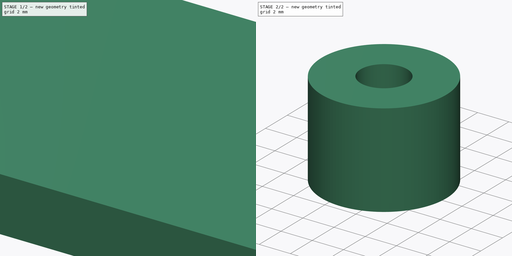
[diagram: build sequence overview — one tinted view per stage of 2, left to right]
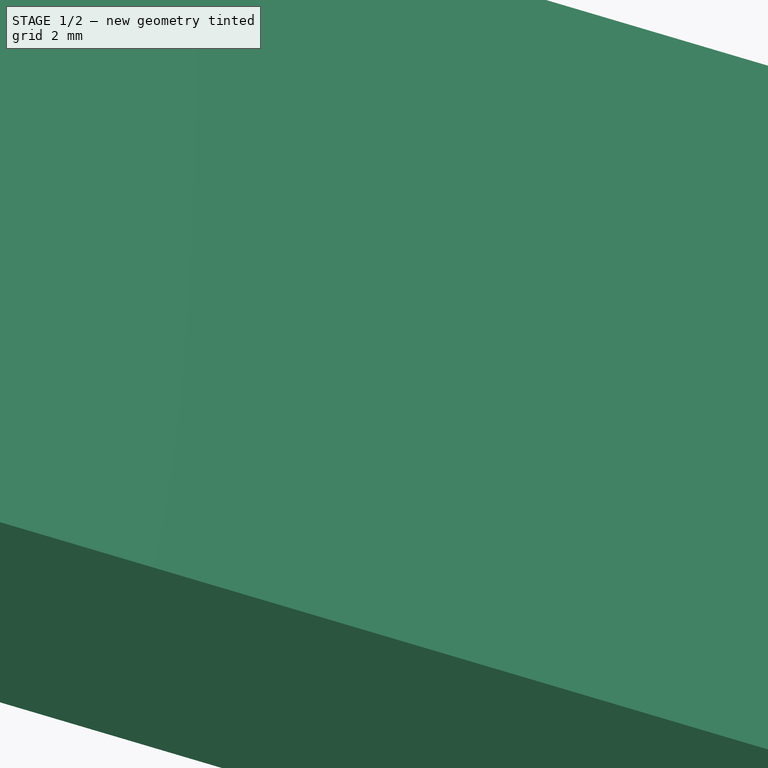
[diagram: stage 1 of 2 — iso view after this stage's code; geometry added in this stage tinted green]
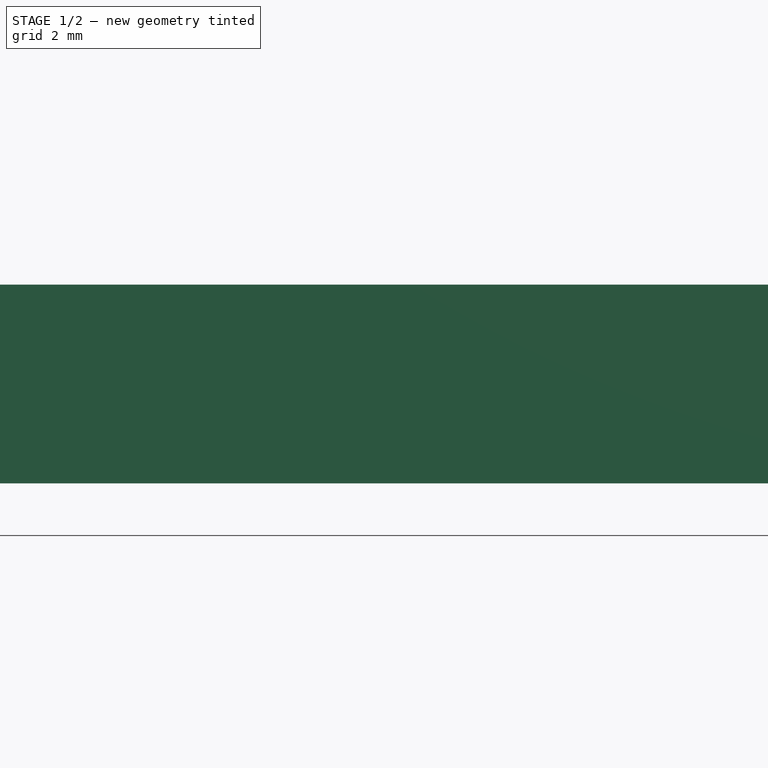
[diagram: stage 1 of 2 — front view after this stage's code; geometry added in this stage tinted green]
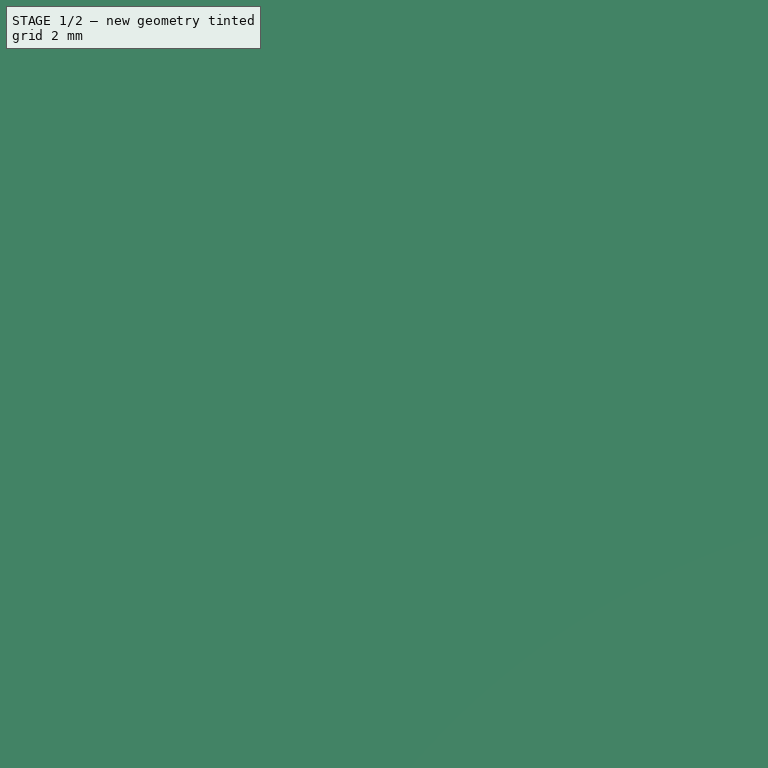
[diagram: stage 1 of 2 — top view after this stage's code; geometry added in this stage tinted green]
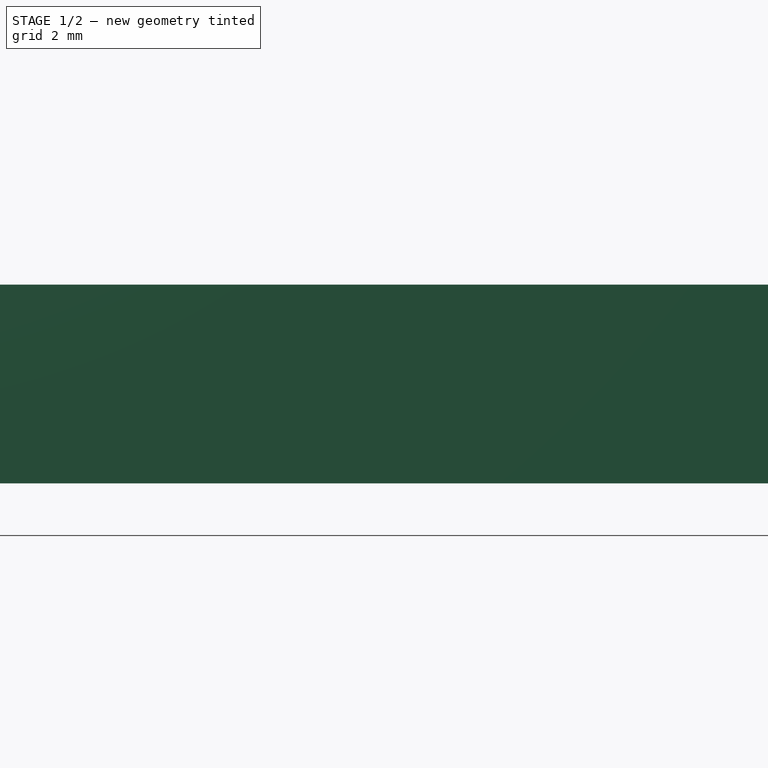
[diagram: stage 1 of 2 — right view after this stage's code; geometry added in this stage tinted green]
FCSTD DOCUMENT  (FreeCAD 0.18R16110 (Git))
Label: backplate
License: All rights reserved
LicenseURL: http://en.wikipedia.org/wiki/All_rights_reserved
objects: Sketcher::SketchObject×3, PartDesign::Pad×1, PartDesign::Body×1, Part::Extrusion×1
note: 7 computed .brp shape members not serialized (recipe doc carries the construction recipe); baked Part::Feature solids carry a one-line shape summary decoded from their .brp

FEATURE [Sketcher::SketchObject] Sketch
  sketch-geometry (15):
    g0: LineSegment StartX=1 StartY=10 StartZ=0 EndX=-19 EndY=10 EndZ=0
    g1: LineSegment StartX=-19 StartY=10 StartZ=0 EndX=-19 EndY=-10 EndZ=0
    g2: LineSegment StartX=-19 StartY=-10 StartZ=0 EndX=-9 EndY=-10 EndZ=0
    g3: LineSegment StartX=-9 StartY=-10 StartZ=0 EndX=-9 EndY=-18 EndZ=0
    g4: LineSegment StartX=-9 StartY=-18 StartZ=0 EndX=-1 EndY=-18 EndZ=0
    g5: LineSegment StartX=-1 StartY=-18 StartZ=0 EndX=-1 EndY=-10 EndZ=0
    g6: LineSegment StartX=-1 StartY=-10 StartZ=0 EndX=19 EndY=-10 EndZ=0
    g7: LineSegment StartX=19 StartY=-10 StartZ=0 EndX=19 EndY=10 EndZ=0
    g8: LineSegment StartX=19 StartY=10 StartZ=0 EndX=9 EndY=10 EndZ=0
    g9: LineSegment StartX=9 StartY=10 StartZ=0 EndX=9 EndY=18 EndZ=0
    g10: LineSegment StartX=9 StartY=18 StartZ=0 EndX=1 EndY=18 EndZ=0
    g11: LineSegment StartX=1 StartY=18 StartZ=0 EndX=1 EndY=10 EndZ=0
    g12: LineSegment StartX=-5.3e-15 StartY=24.0097 StartZ=0 EndX=0 EndY=24.0097 EndZ=0
    g13: Circle CenterX=5 CenterY=14 CenterZ=0 NormalX=0 NormalY=0 NormalZ=1 AngleXU=0 Radius=2.5
    g14: Circle CenterX=-5 CenterY=-14 CenterZ=0 NormalX=0 NormalY=0 NormalZ=1 AngleXU=0 Radius=2.5
  constraints (41):
    c: Coincident(g2,g3)
    c: Coincident(g3,g4)
    c: Coincident(g4,g5)
    c: Coincident(g6,g5)
    c: Coincident(g6,g7)
    c: Coincident(g7,g8)
    c: Coincident(g8,g9)
    c: Coincident(g10,g9)
    c: Coincident(g11,g10)
    c: Coincident(g0,g11)
    c: Coincident(g0,g1)
    c: Coincident(g1,g2)
    c: Vertical(g1)
    c: Vertical(g3)
    c: Vertical(g5)
    c: Vertical(g9)
    c: Horizontal(g10)
    c: Horizontal(g8)
    c: Horizontal(g0)
    c: Horizontal(g2)
    c: Horizontal(g6)
    c: Equal(g4,g10)
    c: DistanceX(g4,g4) = 8
    c: Equal(g6,g0)
    c: DistanceX(g6,g6) = 20
    c: Equal(g8,g2)
    c: DistanceX(g2,g2) = 10
    c: Equal(g7,g1)
    c: DistanceY(g7,g7) = 20
    c: Equal(g9,g11)
    c: Equal(g11,g5)
    c: Equal(g5,g3)
    c: DistanceY(g3,g3) = 8
    c: Symmetric(g6,g7,g-1)
    c: DistanceX(g7) = 19
    c: Radius(g13) = 2.5
    c: DistanceY(g13) = 14
    c: DistanceX(g13) = 5
    c: Radius(g14) = 2.5
    c: DistanceY(g14) = -14
    c: DistanceX(g14) = -5
FEATURE [Sketcher::SketchObject] CopySketch
  sketch-geometry (15):
    g0: LineSegment StartX=1 StartY=10 StartZ=0 EndX=-19 EndY=10 EndZ=0
    g1: LineSegment StartX=-19 StartY=10 StartZ=0 EndX=-19 EndY=-10 EndZ=0
    g2: LineSegment StartX=-19 StartY=-10 StartZ=0 EndX=-9 EndY=-10 EndZ=0
    g3: LineSegment StartX=-9 StartY=-10 StartZ=0 EndX=-9 EndY=-18 EndZ=0
    g4: LineSegment StartX=-9 StartY=-18 StartZ=0 EndX=-1 EndY=-18 EndZ=0
    g5: LineSegment StartX=-1 StartY=-18 StartZ=0 EndX=-1 EndY=-10 EndZ=0
    g6: LineSegment StartX=-1 StartY=-10 StartZ=0 EndX=19 EndY=-10 EndZ=0
    g7: LineSegment StartX=19 StartY=-10 StartZ=0 EndX=19 EndY=10 EndZ=0
    g8: LineSegment StartX=19 StartY=10 StartZ=0 EndX=9 EndY=10 EndZ=0
    g9: LineSegment StartX=9 StartY=10 StartZ=0 EndX=9 EndY=18 EndZ=0
    g10: LineSegment StartX=9 StartY=18 StartZ=0 EndX=1 EndY=18 EndZ=0
    g11: LineSegment StartX=1 StartY=18 StartZ=0 EndX=1 EndY=10 EndZ=0
    g12: LineSegment StartX=-5.3e-15 StartY=24.0097 StartZ=0 EndX=0 EndY=24.0097 EndZ=0
    g13: Circle CenterX=5 CenterY=14 CenterZ=0 NormalX=0 NormalY=0 NormalZ=1 AngleXU=0 Radius=2.5
    g14: Circle CenterX=-5 CenterY=-14 CenterZ=0 NormalX=0 NormalY=0 NormalZ=1 AngleXU=0 Radius=2.5
  constraints (41):
    c: Coincident(g2,g3)
    c: Coincident(g3,g4)
    c: Coincident(g4,g5)
    c: Coincident(g6,g5)
    c: Coincident(g6,g7)
    c: Coincident(g7,g8)
    c: Coincident(g8,g9)
    c: Coincident(g10,g9)
    c: Coincident(g11,g10)
    c: Coincident(g0,g11)
    c: Coincident(g0,g1)
    c: Coincident(g1,g2)
    c: Vertical(g1)
    c: Vertical(g3)
    c: Vertical(g5)
    c: Vertical(g9)
    c: Horizontal(g10)
    c: Horizontal(g8)
    c: Horizontal(g0)
    c: Horizontal(g2)
    c: Horizontal(g6)
    c: Equal(g4,g10)
    c: DistanceX(g4,g4) = 8
    c: Equal(g6,g0)
    c: DistanceX(g6,g6) = 20
    c: Equal(g8,g2)
    c: DistanceX(g2,g2) = 10
    c: Equal(g7,g1)
    c: DistanceY(g7,g7) = 20
    c: Equal(g9,g11)
    c: Equal(g11,g5)
    c: Equal(g5,g3)
    c: DistanceY(g3,g3) = 8
    c: Symmetric(g6,g7,g-1)
    c: DistanceX(g7) = 19
    c: Radius(g13) = 2.5
    c: DistanceY(g13) = 14
    c: DistanceX(g13) = 5
    c: Radius(g14) = 2.5
    c: DistanceY(g14) = -14
    c: DistanceX(g14) = -5
FEATURE [PartDesign::Pad] Pad
  Length = 3
  Length2 = 100
  Profile = -> CopySketch
  Type = 0
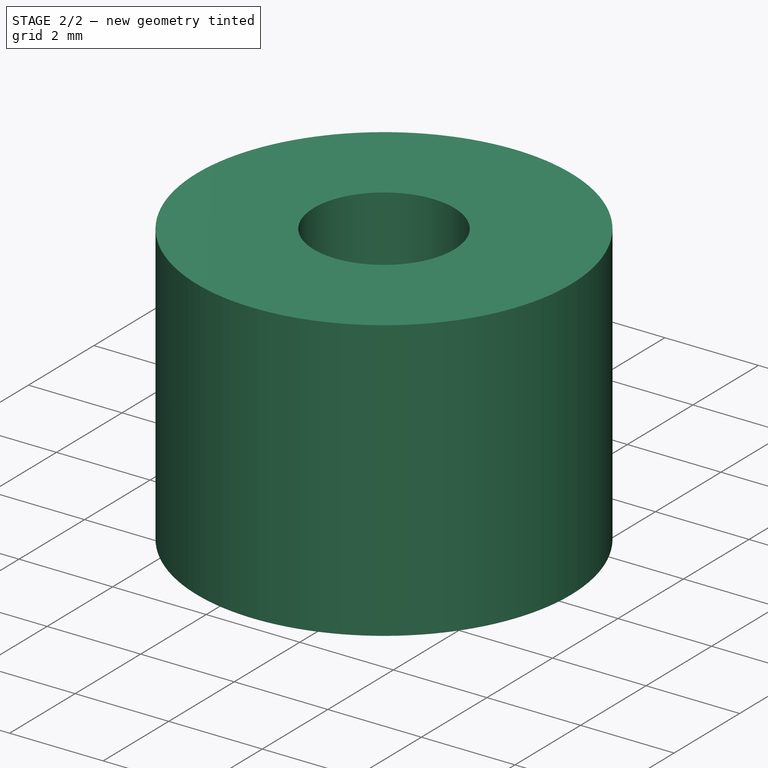
[diagram: stage 2 of 2 — iso view after this stage's code; geometry added in this stage tinted green]
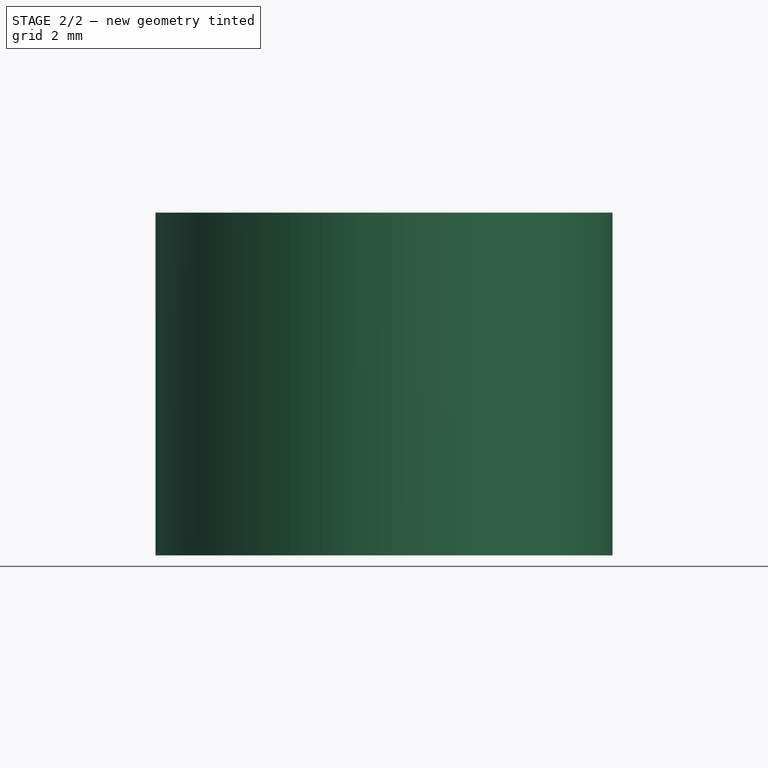
[diagram: stage 2 of 2 — front view after this stage's code; geometry added in this stage tinted green]
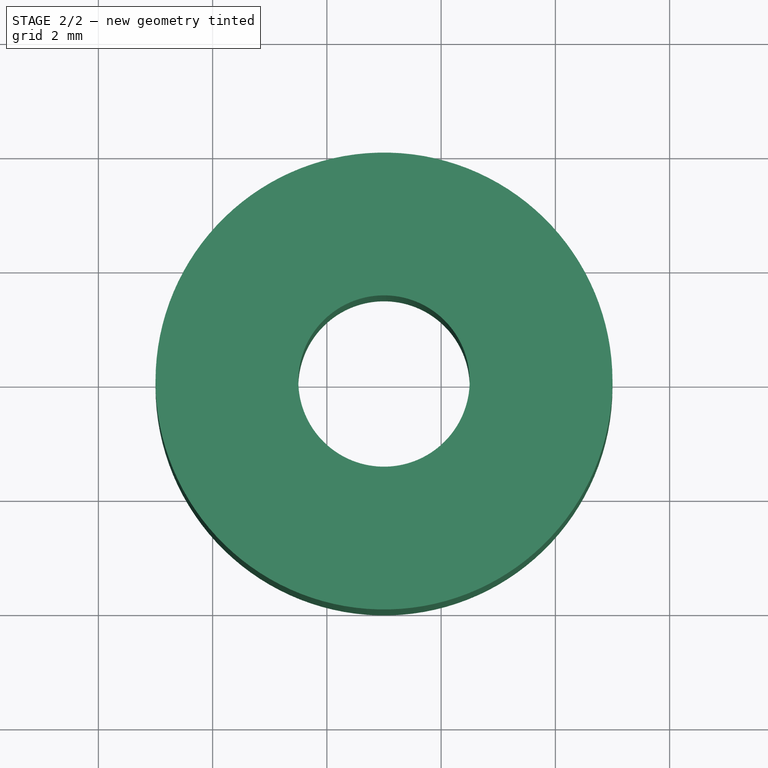
[diagram: stage 2 of 2 — top view after this stage's code; geometry added in this stage tinted green]
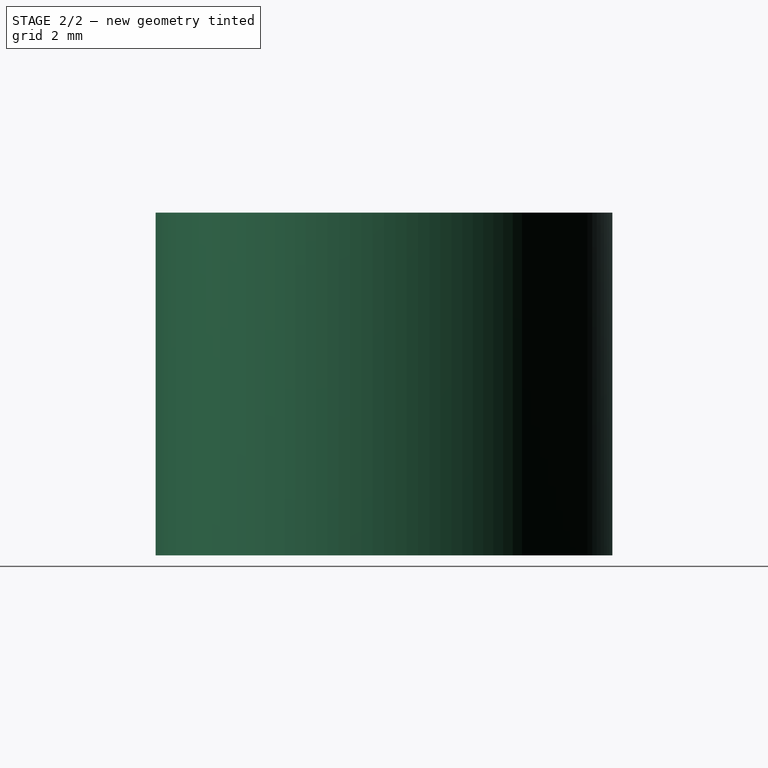
[diagram: stage 2 of 2 — right view after this stage's code; geometry added in this stage tinted green]
FEATURE [PartDesign::Body] Body
  Group = -> [Pad]
  Origin = -> Origin
  Tip = -> Pad
FEATURE [Sketcher::SketchObject] Sketch001
  MapMode = 5
  Placement = pos=(0,0,3) rot=(0,0,1;0rad)
  Support = -> [Pad]
  sketch-geometry (2):
    g0: Circle CenterX=5 CenterY=0 CenterZ=0 NormalX=0 NormalY=0 NormalZ=1 AngleXU=0 Radius=4
    g1: Circle CenterX=5 CenterY=0 CenterZ=0 NormalX=0 NormalY=0 NormalZ=1 AngleXU=0 Radius=1.5
  constraints (5):
    c: PointOnObject(g0,g-1)
    c: Coincident(g1,g0)
    c: DistanceX(g0) = 5
    c: Radius(g1) = 1.5
    c: Radius(g0) = 4
FEATURE [Part::Extrusion] Extrude
  Base = -> Sketch001
  Dir = (0,0,1)
  DirMode = 2
  FaceMakerClass = Part::FaceMakerBullseye
  LengthFwd = 6
  LengthRev = 0
  Solid = true
  Symmetric = false
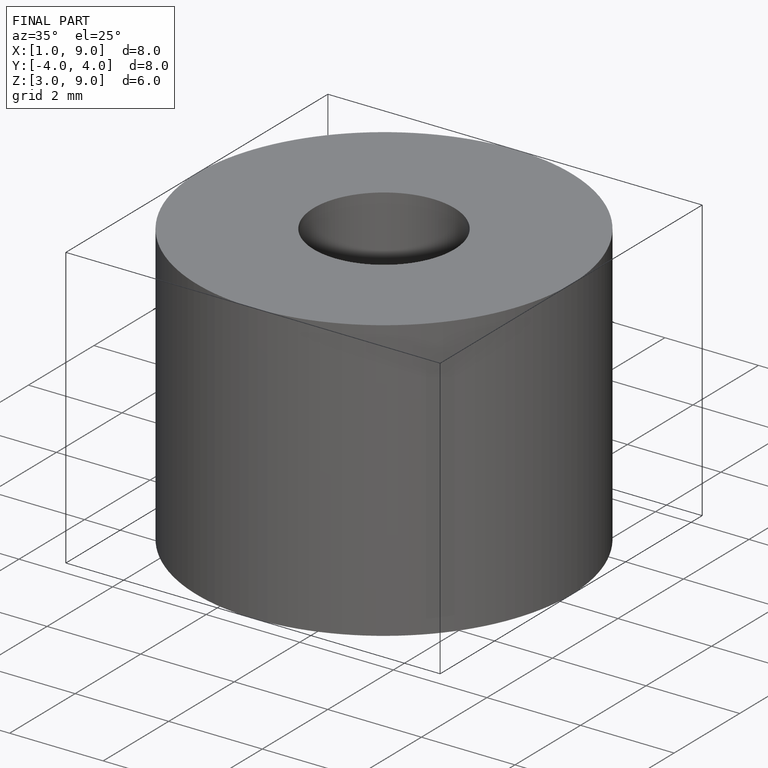
[diagram: finished part — iso view with bounding-box wireframe]
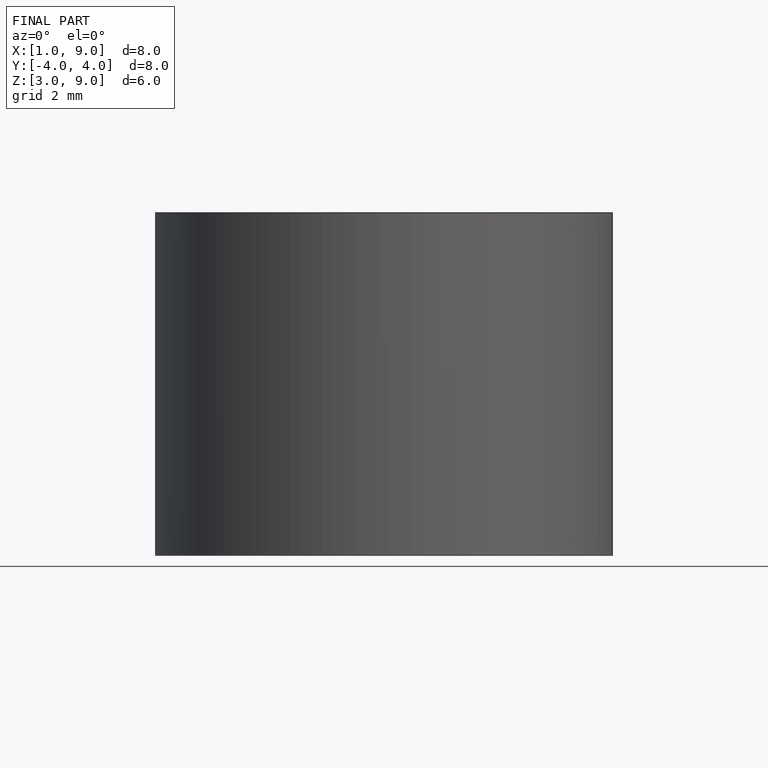
[diagram: finished part — front view with bounding-box wireframe]
